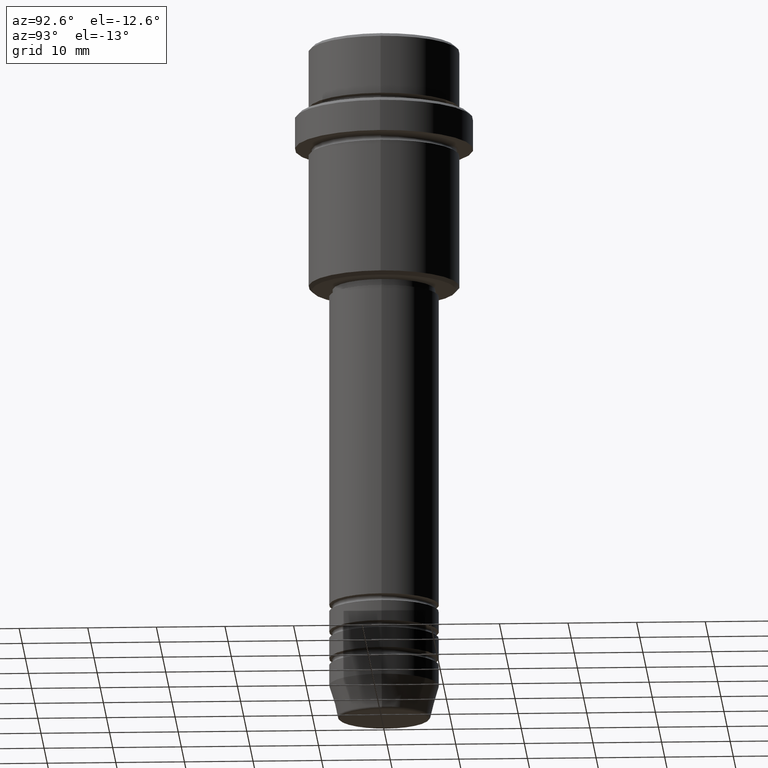
[diagram: clean part render]
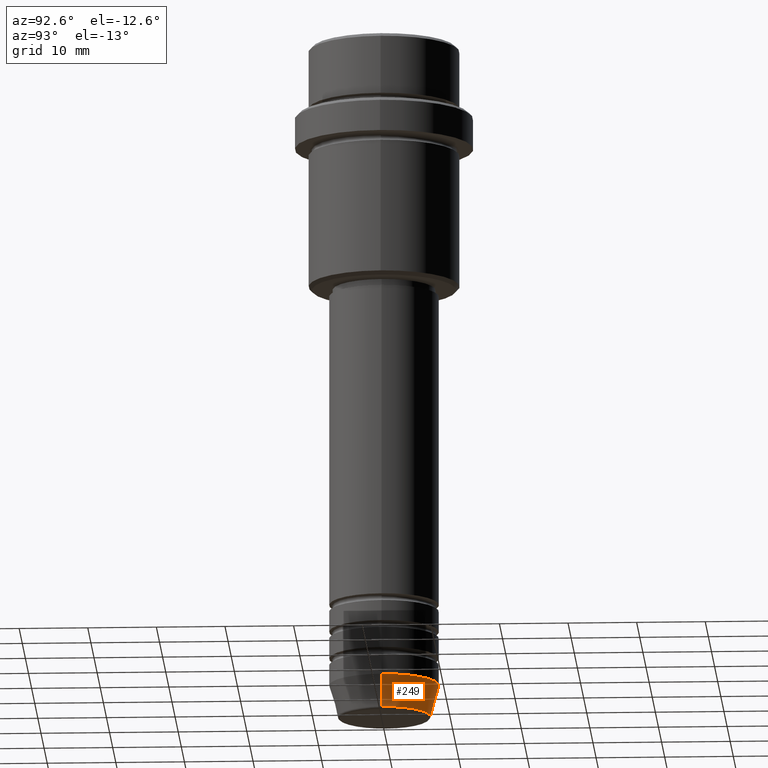
[diagram: same view with one face highlighted and labeled with its STEP entity id]
A machine part, auxiliary view. The second image highlights one B-rep face of the part: STEP entity #249.
In plain terms, the highlighted conical surface has half-angle 15 deg.
Its self-contained STEP definition (entity closure, byte-faithful):
#36 = DIRECTION ( 'NONE',  ( -0.2588190451025213501, 3.169619151431772337E-17, 0.9659258262890680902 ) ) ;
#73 = VECTOR ( 'NONE', #36, 1000.000000000000000 ) ;
#113 = CARTESIAN_POINT ( 'NONE',  ( 0.000000000000000000, 0.000000000000000000, -95.00000000000000000 ) ) ;
#148 = CIRCLE ( 'NONE', #1111, 8.000000000000000000 ) ;
#155 = ORIENTED_EDGE ( 'NONE', *, *, #606, .F. ) ;
#192 = CONICAL_SURFACE ( 'NONE', #740, 8.000000000000000000, 0.2617993877991500740 ) ;
#226 = EDGE_LOOP ( 'NONE', ( #1275, #664, #155, #1162 ) ) ;
#249 = ADVANCED_FACE ( 'NONE', ( #341 ), #192, .T. ) ;
#304 = DIRECTION ( 'NONE',  ( 1.000000000000000000, 0.000000000000000000, 0.000000000000000000 ) ) ;
#341 = FACE_OUTER_BOUND ( 'NONE', #226, .T. ) ;
#352 = VERTEX_POINT ( 'NONE', #1210 ) ;
#355 = CARTESIAN_POINT ( 'NONE',  ( -8.000000000000000000, 9.797174393178825657E-16, -95.00000000000000000 ) ) ;
#405 = CARTESIAN_POINT ( 'NONE',  ( 0.000000000000000000, 0.000000000000000000, -95.00000000000000000 ) ) ;
#406 = CARTESIAN_POINT ( 'NONE',  ( -6.759553456999437770, 9.037619948979308185E-16, -99.62940952255127058 ) ) ;
#483 = VECTOR ( 'NONE', #1277, 1000.000000000000000 ) ;
#523 = LINE ( 'NONE', #837, #483 ) ;
#606 = EDGE_CURVE ( 'NONE', #352, #828, #148, .T. ) ;
#616 = EDGE_CURVE ( 'NONE', #1412, #352, #523, .T. ) ;
#630 = CIRCLE ( 'NONE', #1293, 6.759553456999436882 ) ;
#664 = ORIENTED_EDGE ( 'NONE', *, *, #683, .T. ) ;
#683 = EDGE_CURVE ( 'NONE', #1231, #828, #1008, .T. ) ;
#697 = CARTESIAN_POINT ( 'NONE',  ( -8.000000000000000000, 9.797174393178825657E-16, -95.00000000000000000 ) ) ;
#740 = AXIS2_PLACEMENT_3D ( 'NONE', #113, #1326, #879 ) ;
#820 = CARTESIAN_POINT ( 'NONE',  ( 6.759553456999436882, 0.000000000000000000, -99.62940952255127058 ) ) ;
#821 = DIRECTION ( 'NONE',  ( -0.000000000000000000, -0.000000000000000000, 1.000000000000000000 ) ) ;
#828 = VERTEX_POINT ( 'NONE', #697 ) ;
#837 = CARTESIAN_POINT ( 'NONE',  ( 8.000000000000000000, 0.000000000000000000, -95.00000000000000000 ) ) ;
#849 = DIRECTION ( 'NONE',  ( -0.000000000000000000, -0.000000000000000000, 1.000000000000000000 ) ) ;
#879 = DIRECTION ( 'NONE',  ( 1.000000000000000000, 0.000000000000000000, 0.000000000000000000 ) ) ;
#1008 = LINE ( 'NONE', #355, #73 ) ;
#1050 = CARTESIAN_POINT ( 'NONE',  ( 0.000000000000000000, 0.000000000000000000, -99.62940952255127058 ) ) ;
#1111 = AXIS2_PLACEMENT_3D ( 'NONE', #405, #849, #304 ) ;
#1161 = DIRECTION ( 'NONE',  ( 1.000000000000000000, 0.000000000000000000, 0.000000000000000000 ) ) ;
#1162 = ORIENTED_EDGE ( 'NONE', *, *, #616, .F. ) ;
#1210 = CARTESIAN_POINT ( 'NONE',  ( 8.000000000000000000, 0.000000000000000000, -95.00000000000000000 ) ) ;
#1231 = VERTEX_POINT ( 'NONE', #406 ) ;
#1245 = EDGE_CURVE ( 'NONE', #1412, #1231, #630, .T. ) ;
#1275 = ORIENTED_EDGE ( 'NONE', *, *, #1245, .T. ) ;
#1277 = DIRECTION ( 'NONE',  ( 0.2588190451025213501, 0.000000000000000000, 0.9659258262890680902 ) ) ;
#1293 = AXIS2_PLACEMENT_3D ( 'NONE', #1050, #821, #1161 ) ;
#1326 = DIRECTION ( 'NONE',  ( -0.000000000000000000, -0.000000000000000000, 1.000000000000000000 ) ) ;
#1412 = VERTEX_POINT ( 'NONE', #820 ) ;